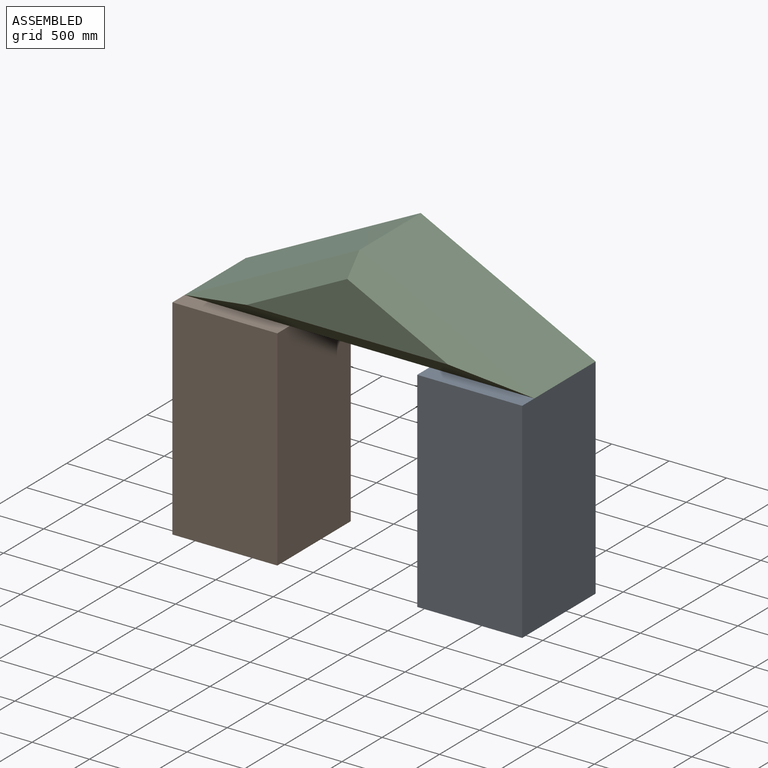
[diagram: assembled view]
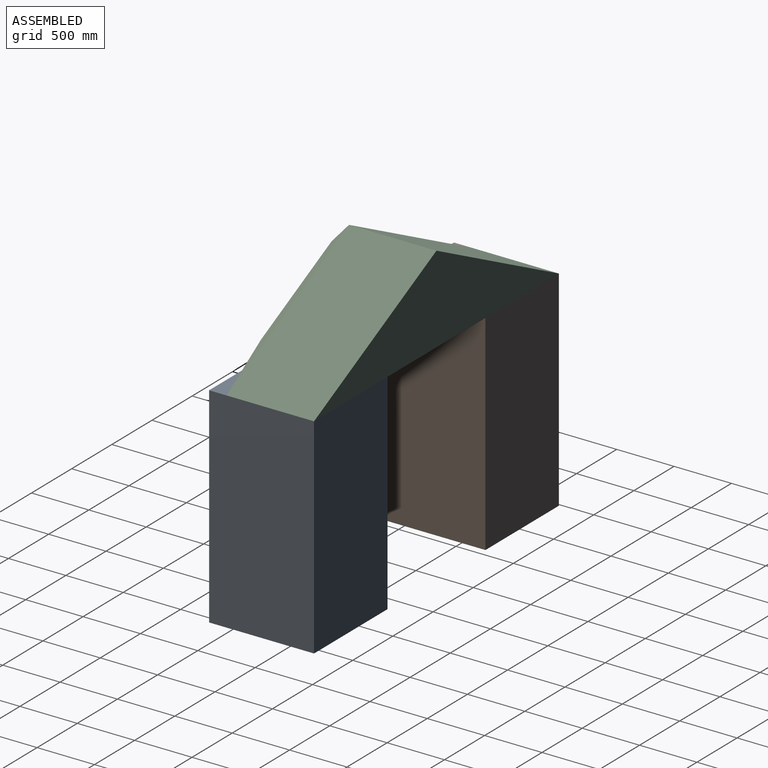
[diagram: assembled view, second angle]
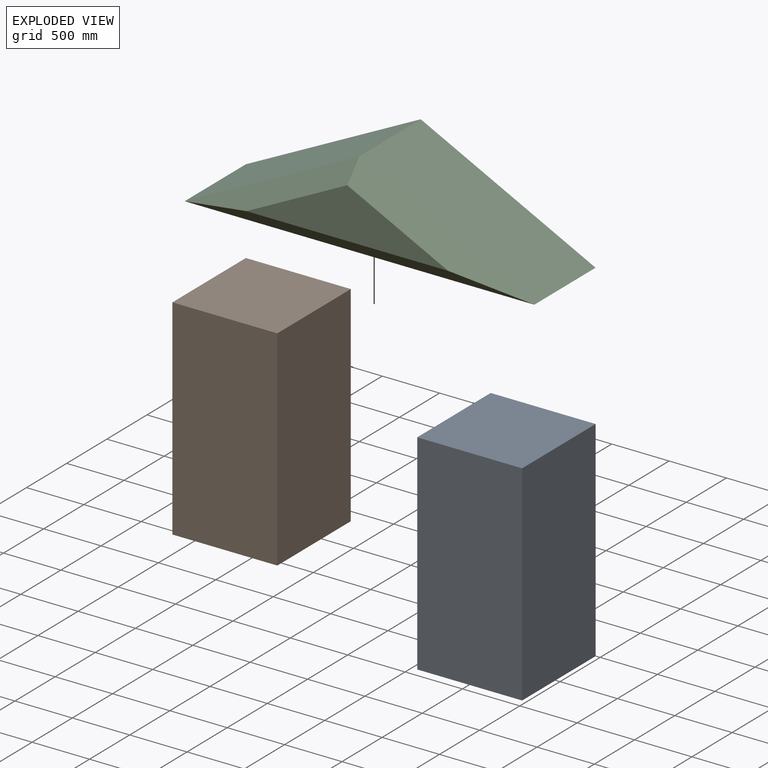
[diagram: exploded view]
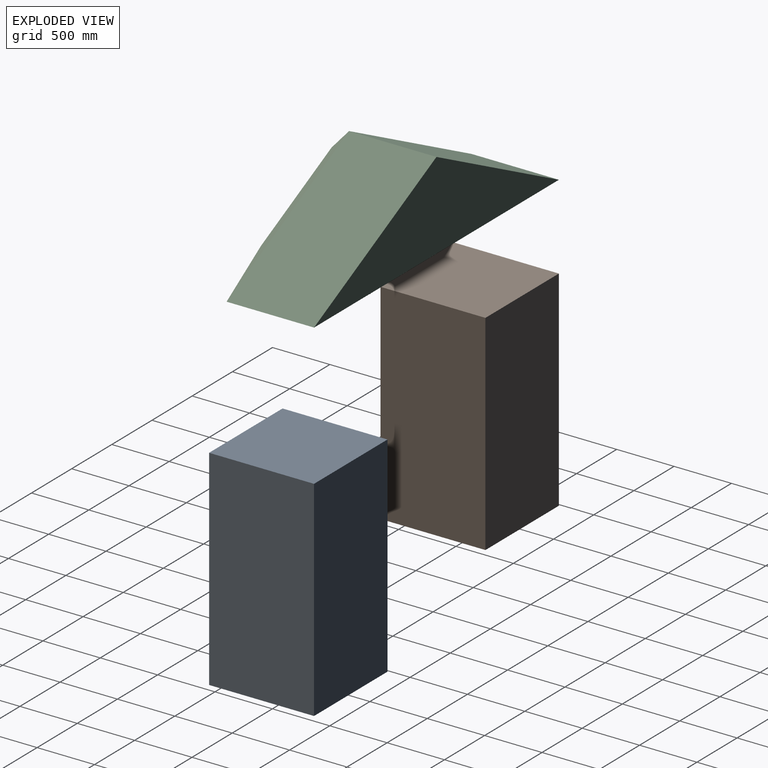
[diagram: exploded view, second angle]
ASSEMBLY  parts=3 mates=2
PART A: 6 faces, bbox 914.4x914.4x1828.8 mm
  f0: plane 1828.8x914.4mm, normal (1,0,0), area 1672254.7mm2, adj f1,f3,f4,f5
  f1: plane 1828.8x914.4mm, normal (0,1,0), area 1672254.7mm2, adj f0,f2,f4,f5
  f2: plane 1828.8x914.4mm, normal (-1,0,0), area 1672254.7mm2, adj f1,f3,f4,f5
  f3: plane 1828.8x914.4mm, normal (0,-1,0), area 1672254.7mm2, adj f0,f2,f4,f5
  f4: plane 914.4x914.4mm, normal (0,0,1), area 836127.4mm2, adj f0,f1,f2,f3
  f5: plane 914.4x914.4mm, normal (0,0,-1), area 836127.4mm2, adj f0,f1,f2,f3
PART B: same geometry as A
PART C: 8 faces, bbox 3048x914.4x762 mm
  f0: plane 1524x762mm, normal (0.45,0,0.89), area 1298359.5mm2, adj f1,f2,f4,f7
  f1: plane 1524x762mm, normal (-0.45,0,0.89), area 1298359.5mm2, adj f0,f2,f4,f6
  f2: plane 3048x762mm, normal (0,0,-1), area 2322576mm2, adj f0,f1,f4,f5
  f3: plane 1756.85x439.21mm, normal (0,-1,0), area 385813.7mm2, adj f5,f6,f7
  f4: plane 3048x762mm, normal (0,1,0), area 1161288mm2, adj f0,f1,f2
  f5: plane 3048x152.4mm, normal (0,-0.71,-0.71), area 517785mm2, adj f2,f3,f6,f7
  f6: plane 1524x762mm, normal (-0.32,-0.71,0.63), area 289450.6mm2, adj f1,f3,f5,f7
  f7: plane 1524x762mm, normal (0.32,-0.71,0.63), area 289450.6mm2, adj f0,f3,f5,f6
PLACE A t=(1080.34,432.49,-286.87)mm fixed
PLACE B t=(-1053.26,432.49,-286.87)mm
PLACE C t=(13.54,432.49,627.53)mm
MATE fastened C.f2 <-> B.f4  axis (0,0,1) through (-1510.46,889.69,627.53)mm
MATE fastened A.f4 <-> C.f2  axis (0,0,1) through (1537.54,889.69,627.53)mm
